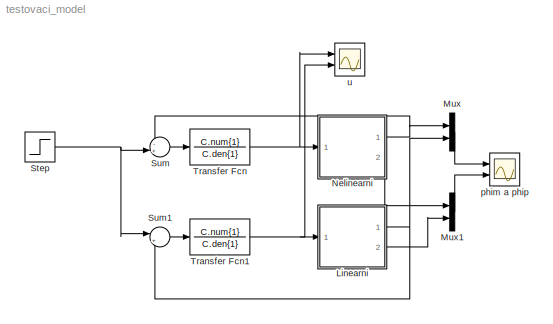
MODEL testovaci_model
KIND model
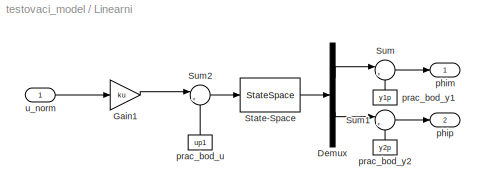
BLOCK [SubSystem] Linearni
  Ports = [1, 2]
  RequestExecContextInheritance = off
  SID = 107
BLOCK [Demux] Linearni/Demux
  DisplayOption = bar
  Outputs = 2
  Ports = [1, 2]
  SID = 109
BLOCK [Gain] Linearni/Gain1
  Gain = ku
  OutDataTypeStr = Inherit: Inherit via internal rule
  ParamDataTypeStr = Inherit: Inherit via internal rule
  SID = 110
  SaturateOnIntegerOverflow = off
BLOCK [StateSpace] Linearni/State-Space
  A = Alin
  B = Blin
  C = Clin
  D = Dlin
  Ports = [1, 1]
  SID = 111
  X0 = 0
BLOCK [Sum] Linearni/Sum
  IconShape = round
  InputSameDT = off
  Inputs = |++
  OutDataTypeStr = Inherit: Inherit via internal rule
  Ports = [2, 1]
  SID = 112
  SaturateOnIntegerOverflow = off
BLOCK [Sum] Linearni/Sum1
  IconShape = round
  InputSameDT = off
  Inputs = |++
  OutDataTypeStr = Inherit: Inherit via internal rule
  Ports = [2, 1]
  SID = 113
  SaturateOnIntegerOverflow = off
BLOCK [Sum] Linearni/Sum2
  IconShape = round
  InputSameDT = off
  Inputs = |+-
  OutDataTypeStr = Inherit: Inherit via internal rule
  Ports = [2, 1]
  SID = 114
  SaturateOnIntegerOverflow = off
BLOCK [Outport] Linearni/phim
  IconDisplay = Port number
  SID = 118
BLOCK [Outport] Linearni/phip
  IconDisplay = Port number
  Port = 2
  SID = 119
BLOCK [Constant] Linearni/prac_bod_u
  SID = 115
  Value = up1
BLOCK [Constant] Linearni/prac_bod_y1
  SID = 116
  Value = y1p
BLOCK [Constant] Linearni/prac_bod_y2
  SID = 117
  Value = y2p
BLOCK [Inport] Linearni/u_norm
  IconDisplay = Port number
  SID = 108
BLOCK [Mux] Mux
  DisplayOption = bar
  Inputs = 2
  Ports = [2, 1]
  SID = 75
BLOCK [Mux] Mux1
  DisplayOption = bar
  Inputs = 2
  Ports = [2, 1]
  SID = 76
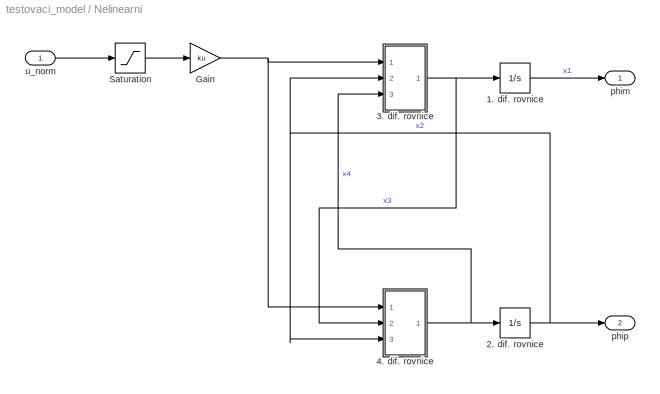
BLOCK [SubSystem] Nelinearni
  Ports = [1, 2]
  RequestExecContextInheritance = off
  SID = 120
BLOCK [Integrator] Nelinearni/1. dif. rovnice
  InitialCondition = x1p
  Ports = [1, 1]
  SID = 122
BLOCK [Integrator] Nelinearni/2. dif. rovnice
  InitialCondition = x2p
  Ports = [1, 1]
  SID = 123
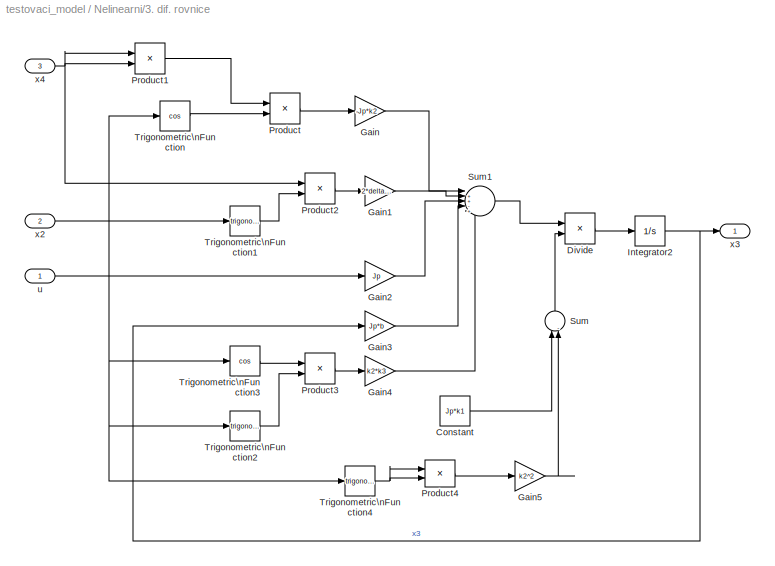
BLOCK [SubSystem] Nelinearni/3. dif. rovnice
  Ports = [3, 1]
  RequestExecContextInheritance = off
  SID = 124
BLOCK [Constant] Nelinearni/3. dif. rovnice/Constant
  SID = 128
  Value = Jp*k1
BLOCK [Product] Nelinearni/3. dif. rovnice/Divide
  InputSameDT = off
  Inputs = */
  OutDataTypeStr = Inherit: Inherit via internal rule
  Ports = [2, 1]
  RndMeth = Floor
  SID = 129
  SaturateOnIntegerOverflow = off
BLOCK [Gain] Nelinearni/3. dif. rovnice/Gain
  Gain = -Jp*k2
  OutDataTypeStr = Inherit: Inherit via internal rule
  ParamDataTypeStr = Inherit: Inherit via internal rule
  SID = 130
  SaturateOnIntegerOverflow = off
BLOCK [Gain] Nelinearni/3. dif. rovnice/Gain1
  Gain = 2*delta*k2
  OutDataTypeStr = Inherit: Inherit via internal rule
  ParamDataTypeStr = Inherit: Inherit via internal rule
  SID = 131
  SaturateOnIntegerOverflow = off
BLOCK [Gain] Nelinearni/3. dif. rovnice/Gain2
  Gain = Jp
  OutDataTypeStr = Inherit: Inherit via internal rule
  ParamDataTypeStr = Inherit: Inherit via internal rule
  SID = 132
  SaturateOnIntegerOverflow = off
BLOCK [Gain] Nelinearni/3. dif. rovnice/Gain3
  Gain = Jp*b
  OutDataTypeStr = Inherit: Inherit via internal rule
  ParamDataTypeStr = Inherit: Inherit via internal rule
  SID = 133
  SaturateOnIntegerOverflow = off
BLOCK [Gain] Nelinearni/3. dif. rovnice/Gain4
  Gain = k2*k3
  OutDataTypeStr = Inherit: Inherit via internal rule
  ParamDataTypeStr = Inherit: Inherit via internal rule
  SID = 134
  SaturateOnIntegerOverflow = off
BLOCK [Gain] Nelinearni/3. dif. rovnice/Gain5
  Gain = k2^2
  OutDataTypeStr = Inherit: Inherit via internal rule
  ParamDataTypeStr = Inherit: Inherit via internal rule
  SID = 135
  SaturateOnIntegerOverflow = off
BLOCK [Integrator] Nelinearni/3. dif. rovnice/Integrator2
  InitialCondition = x3p
  Ports = [1, 1]
  SID = 136
BLOCK [Product] Nelinearni/3. dif. rovnice/Product
  InputSameDT = off
  OutDataTypeStr = Inherit: Inherit via internal rule
  Ports = [2, 1]
  RndMeth = Floor
  SID = 137
  SaturateOnIntegerOverflow = off
BLOCK [Product] Nelinearni/3. dif. rovnice/Product1
  InputSameDT = off
  OutDataTypeStr = Inherit: Inherit via internal rule
  Ports = [2, 1]
  RndMeth = Floor
  SID = 138
  SaturateOnIntegerOverflow = off
BLOCK [Product] Nelinearni/3. dif. rovnice/Product2
  InputSameDT = off
  OutDataTypeStr = Inherit: Inherit via internal rule
  Ports = [2, 1]
  RndMeth = Floor
  SID = 139
  SaturateOnIntegerOverflow = off
BLOCK [Product] Nelinearni/3. dif. rovnice/Product3
  InputSameDT = off
  OutDataTypeStr = Inherit: Inherit via internal rule
  Ports = [2, 1]
  RndMeth = Floor
  SID = 140
  SaturateOnIntegerOverflow = off
BLOCK [Product] Nelinearni/3. dif. rovnice/Product4
  InputSameDT = off
  OutDataTypeStr = Inherit: Inherit via internal rule
  Ports = [2, 1]
  RndMeth = Floor
  SID = 141
  SaturateOnIntegerOverflow = off
BLOCK [Sum] Nelinearni/3. dif. rovnice/Sum
  IconShape = round
  InputSameDT = off
  Inputs = |-+
  OutDataTypeStr = Inherit: Inherit via internal rule
  Ports = [2, 1]
  SID = 142
  SaturateOnIntegerOverflow = off
BLOCK [Sum] Nelinearni/3. dif. rovnice/Sum1
  IconShape = round
  InputSameDT = off
  Inputs = |++-++
  OutDataTypeStr = Inherit: Inherit via internal rule
  Ports = [5, 1]
  SID = 143
  SaturateOnIntegerOverflow = off
BLOCK [Trigonometry] Nelinearni/3. dif. rovnice/Trigonometric\nFunction
  Operator = cos
  Ports = [1, 1]
  SID = 144
BLOCK [Trigonometry] Nelinearni/3. dif. rovnice/Trigonometric\nFunction1
  Ports = [1, 1]
  SID = 145
BLOCK [Trigonometry] Nelinearni/3. dif. rovnice/Trigonometric\nFunction2
  Ports = [1, 1]
  SID = 146
BLOCK [Trigonometry] Nelinearni/3. dif. rovnice/Trigonometric\nFunction3
  Operator = cos
  Ports = [1, 1]
  SID = 147
BLOCK [Trigonometry] Nelinearni/3. dif. rovnice/Trigonometric\nFunction4
  Ports = [1, 1]
  SID = 148
BLOCK [Inport] Nelinearni/3. dif. rovnice/u
  IconDisplay = Port number
  SID = 125
BLOCK [Inport] Nelinearni/3. dif. rovnice/x2
  IconDisplay = Port number
  Port = 2
  SID = 126
BLOCK [Outport] Nelinearni/3. dif. rovnice/x3
  IconDisplay = Port number
  SID = 149
BLOCK [Inport] Nelinearni/3. dif. rovnice/x4
  IconDisplay = Port number
  Port = 3
  SID = 127
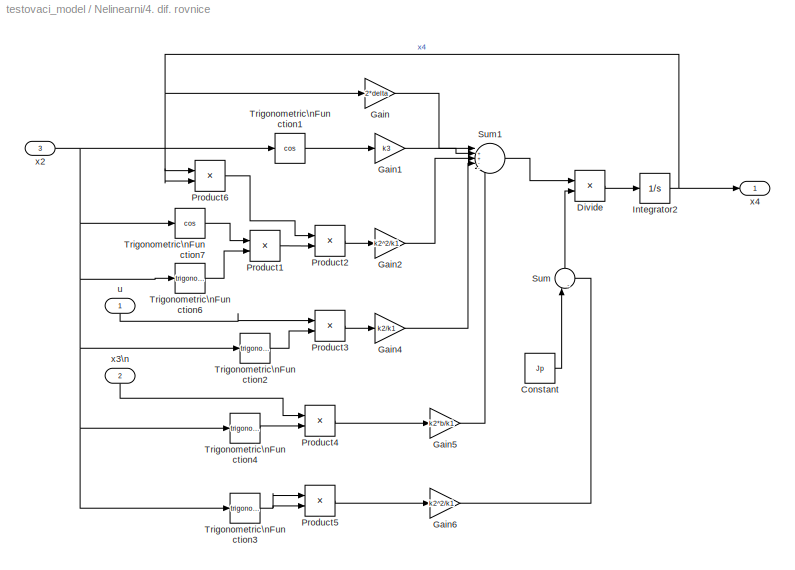
BLOCK [SubSystem] Nelinearni/4. dif. rovnice
  Ports = [3, 1]
  RequestExecContextInheritance = off
  SID = 150
BLOCK [Constant] Nelinearni/4. dif. rovnice/Constant
  SID = 154
  Value = Jp
BLOCK [Product] Nelinearni/4. dif. rovnice/Divide
  InputSameDT = off
  Inputs = */
  OutDataTypeStr = Inherit: Inherit via internal rule
  Ports = [2, 1]
  RndMeth = Floor
  SID = 155
  SaturateOnIntegerOverflow = off
BLOCK [Gain] Nelinearni/4. dif. rovnice/Gain
  Gain = 2*delta
  OutDataTypeStr = Inherit: Inherit via internal rule
  ParamDataTypeStr = Inherit: Inherit via internal rule
  SID = 156
  SaturateOnIntegerOverflow = off
BLOCK [Gain] Nelinearni/4. dif. rovnice/Gain1
  Gain = k3
  OutDataTypeStr = Inherit: Inherit via internal rule
  ParamDataTypeStr = Inherit: Inherit via internal rule
  SID = 157
  SaturateOnIntegerOverflow = off
BLOCK [Gain] Nelinearni/4. dif. rovnice/Gain2
  Gain = k2^2/k1
  OutDataTypeStr = Inherit: Inherit via internal rule
  ParamDataTypeStr = Inherit: Inherit via internal rule
  SID = 158
  SaturateOnIntegerOverflow = off
BLOCK [Gain] Nelinearni/4. dif. rovnice/Gain4
  Gain = k2/k1
  OutDataTypeStr = Inherit: Inherit via internal rule
  ParamDataTypeStr = Inherit: Inherit via internal rule
  SID = 159
  SaturateOnIntegerOverflow = off
BLOCK [Gain] Nelinearni/4. dif. rovnice/Gain5
  Gain = k2*b/k1
  OutDataTypeStr = Inherit: Inherit via internal rule
  ParamDataTypeStr = Inherit: Inherit via internal rule
  SID = 160
  SaturateOnIntegerOverflow = off
BLOCK [Gain] Nelinearni/4. dif. rovnice/Gain6
  Gain = k2^2/k1
  OutDataTypeStr = Inherit: Inherit via internal rule
  ParamDataTypeStr = Inherit: Inherit via internal rule
  SID = 161
  SaturateOnIntegerOverflow = off
BLOCK [Integrator] Nelinearni/4. dif. rovnice/Integrator2
  InitialCondition = x4p
  Ports = [1, 1]
  SID = 162
BLOCK [Product] Nelinearni/4. dif. rovnice/Product1
  InputSameDT = off
  OutDataTypeStr = Inherit: Inherit via internal rule
  Ports = [2, 1]
  RndMeth = Floor
  SID = 163
  SaturateOnIntegerOverflow = off
BLOCK [Product] Nelinearni/4. dif. rovnice/Product2
  InputSameDT = off
  OutDataTypeStr = Inherit: Inherit via internal rule
  Ports = [2, 1]
  RndMeth = Floor
  SID = 164
  SaturateOnIntegerOverflow = off
BLOCK [Product] Nelinearni/4. dif. rovnice/Product3
  InputSameDT = off
  OutDataTypeStr = Inherit: Inherit via internal rule
  Ports = [2, 1]
  RndMeth = Floor
  SID = 165
  SaturateOnIntegerOverflow = off
BLOCK [Product] Nelinearni/4. dif. rovnice/Product4
  InputSameDT = off
  OutDataTypeStr = Inherit: Inherit via internal rule
  Ports = [2, 1]
  RndMeth = Floor
  SID = 166
  SaturateOnIntegerOverflow = off
BLOCK [Product] Nelinearni/4. dif. rovnice/Product5
  InputSameDT = off
  OutDataTypeStr = Inherit: Inherit via internal rule
  Ports = [2, 1]
  RndMeth = Floor
  SID = 167
  SaturateOnIntegerOverflow = off
BLOCK [Product] Nelinearni/4. dif. rovnice/Product6
  InputSameDT = off
  OutDataTypeStr = Inherit: Inherit via internal rule
  Ports = [2, 1]
  RndMeth = Floor
  SID = 168
  SaturateOnIntegerOverflow = off
BLOCK [Sum] Nelinearni/4. dif. rovnice/Sum
  IconShape = round
  InputSameDT = off
  Inputs = |-+
  OutDataTypeStr = Inherit: Inherit via internal rule
  Ports = [2, 1]
  SID = 169
  SaturateOnIntegerOverflow = off
BLOCK [Sum] Nelinearni/4. dif. rovnice/Sum1
  IconShape = round
  InputSameDT = off
  Inputs = |++--+
  OutDataTypeStr = Inherit: Inherit via internal rule
  Ports = [5, 1]
  SID = 170
  SaturateOnIntegerOverflow = off
BLOCK [Trigonometry] Nelinearni/4. dif. rovnice/Trigonometric\nFunction1
  Operator = cos
  Ports = [1, 1]
  SID = 171
BLOCK [Trigonometry] Nelinearni/4. dif. rovnice/Trigonometric\nFunction2
  Ports = [1, 1]
  SID = 172
BLOCK [Trigonometry] Nelinearni/4. dif. rovnice/Trigonometric\nFunction3
  Ports = [1, 1]
  SID = 173
BLOCK [Trigonometry] Nelinearni/4. dif. rovnice/Trigonometric\nFunction4
  Ports = [1, 1]
  SID = 174
BLOCK [Trigonometry] Nelinearni/4. dif. rovnice/Trigonometric\nFunction6
  Ports = [1, 1]
  SID = 175
BLOCK [Trigonometry] Nelinearni/4. dif. rovnice/Trigonometric\nFunction7
  Operator = cos
  Ports = [1, 1]
  SID = 176
BLOCK [Inport] Nelinearni/4. dif. rovnice/u
  IconDisplay = Port number
  SID = 151
BLOCK [Inport] Nelinearni/4. dif. rovnice/x2
  IconDisplay = Port number
  Port = 3
  SID = 153
BLOCK [Inport] Nelinearni/4. dif. rovnice/x3\n
  IconDisplay = Port number
  Port = 2
  SID = 152
BLOCK [Outport] Nelinearni/4. dif. rovnice/x4
  IconDisplay = Port number
  SID = 177
BLOCK [Gain] Nelinearni/Gain
  Gain = ku
  OutDataTypeStr = Inherit: Inherit via internal rule
  ParamDataTypeStr = Inherit: Inherit via internal rule
  SID = 178
  SaturateOnIntegerOverflow = off
BLOCK [Saturate] Nelinearni/Saturation
  InputPortMap = u0
  LowerLimit = -1
  Ports = [1, 1]
  SID = 179
  UpperLimit = 1
BLOCK [Outport] Nelinearni/phim
  IconDisplay = Port number
  SID = 180
BLOCK [Outport] Nelinearni/phip
  IconDisplay = Port number
  Port = 2
  SID = 181
BLOCK [Inport] Nelinearni/u_norm
  IconDisplay = Port number
  SID = 121
BLOCK [Step] Step
  After = 20
  SID = 78
  SampleTime = 0
  Time = 0
BLOCK [Sum] Sum
  IconShape = round
  InputSameDT = off
  Inputs = -+|
  OutDataTypeStr = Inherit: Inherit via internal rule
  Ports = [2, 1]
  SID = 100
  SaturateOnIntegerOverflow = off
BLOCK [Sum] Sum1
  IconShape = round
  InputSameDT = off
  Inputs = |+-
  OutDataTypeStr = Inherit: Inherit via internal rule
  Ports = [2, 1]
  SID = 101
  SaturateOnIntegerOverflow = off
BLOCK [TransferFcn] Transfer Fcn
  Denominator = C.den{1}
  Numerator = C.num{1}
  SID = 99
BLOCK [TransferFcn] Transfer Fcn1
  Denominator = C.den{1}
  Numerator = C.num{1}
  SID = 102
BLOCK [Scope] phim a phip
  DataFormat = StructureWithTime
  Floating = off
  LegendLocations = 0.91847     0.54704    0.062605    0.032659\n0.91743      0.4481    0.062605    0.032659
  LimitDataPoints = off
  NumInputPorts = 2
  Ports = [2]
  SID = 77
  SampleTime = 0
  SaveName = vystup
  SaveToWorkspace = on
  ShowLegends = on
  TimeRange = 12.49629428456308
  YMax = 0.9999999999998991~-1.570796326794724
  YMin = 0.999999999999679~-1.570796326795069
BLOCK [Scope] u
  DataFormat = StructureWithTime
  Floating = off
  LegendLocations = 0.91847     0.54704    0.041268    0.018593\n0.91743      0.4481    0.044455    0.018593
  LimitDataPoints = off
  NumInputPorts = 2
  Ports = [2]
  SID = 105
  SampleTime = 0
  SaveName = vystup1
  SaveToWorkspace = on
  ShowLegends = on
  TimeRange = 12.49629428456308
  YMax = 0.9999999999998991~-1.570796326794724
  YMin = 0.999999999999679~-1.570796326795069
LINE Linearni/Demux:1 -> Linearni/Sum:1
LINE Linearni/Demux:2 -> Linearni/Sum1:1
LINE Linearni/Gain1:1 -> Linearni/Sum2:1
LINE Linearni/State-Space:1 -> Linearni/Demux:1
LINE Linearni/Sum1:1 -> Linearni/phip:1
LINE Linearni/Sum2:1 -> Linearni/State-Space:1
LINE Linearni/Sum:1 -> Linearni/phim:1
LINE Linearni/prac_bod_u:1 -> Linearni/Sum2:2
LINE Linearni/prac_bod_y1:1 -> Linearni/Sum:2
LINE Linearni/prac_bod_y2:1 -> Linearni/Sum1:2
LINE Linearni/u_norm:1 -> Linearni/Gain1:1
NET Linearni:1 -> Mux:2, Sum1:2
LINE Linearni:2 -> Mux1:2
LINE Mux1:1 -> phim a phip:2
LINE Mux:1 -> phim a phip:1
LINE Nelinearni/1. dif. rovnice:1 -> Nelinearni/phim:1
NET Nelinearni/2. dif. rovnice:1 -> Nelinearni/3. dif. rovnice:2, Nelinearni/4. dif. rovnice:3, Nelinearni/phip:1
LINE Nelinearni/3. dif. rovnice/Constant:1 -> Nelinearni/3. dif. rovnice/Sum:1
LINE Nelinearni/3. dif. rovnice/Divide:1 -> Nelinearni/3. dif. rovnice/Integrator2:1
LINE Nelinearni/3. dif. rovnice/Gain1:1 -> Nelinearni/3. dif. rovnice/Sum1:2
LINE Nelinearni/3. dif. rovnice/Gain2:1 -> Nelinearni/3. dif. rovnice/Sum1:3
LINE Nelinearni/3. dif. rovnice/Gain3:1 -> Nelinearni/3. dif. rovnice/Sum1:4
LINE Nelinearni/3. dif. rovnice/Gain4:1 -> Nelinearni/3. dif. rovnice/Sum1:5
LINE Nelinearni/3. dif. rovnice/Gain5:1 -> Nelinearni/3. dif. rovnice/Sum:2
LINE Nelinearni/3. dif. rovnice/Gain:1 -> Nelinearni/3. dif. rovnice/Sum1:1
NET Nelinearni/3. dif. rovnice/Integrator2:1 -> Nelinearni/3. dif. rovnice/Gain3:1, Nelinearni/3. dif. rovnice/x3:1
LINE Nelinearni/3. dif. rovnice/Product1:1 -> Nelinearni/3. dif. rovnice/Product:1
LINE Nelinearni/3. dif. rovnice/Product2:1 -> Nelinearni/3. dif. rovnice/Gain1:1
LINE Nelinearni/3. dif. rovnice/Product3:1 -> Nelinearni/3. dif. rovnice/Gain4:1
LINE Nelinearni/3. dif. rovnice/Product4:1 -> Nelinearni/3. dif. rovnice/Gain5:1
LINE Nelinearni/3. dif. rovnice/Product:1 -> Nelinearni/3. dif. rovnice/Gain:1
LINE Nelinearni/3. dif. rovnice/Sum1:1 -> Nelinearni/3. dif. rovnice/Divide:1
LINE Nelinearni/3. dif. rovnice/Sum:1 -> Nelinearni/3. dif. rovnice/Divide:2
LINE Nelinearni/3. dif. rovnice/Trigonometric\nFunction1:1 -> Nelinearni/3. dif. rovnice/Product2:2
LINE Nelinearni/3. dif. rovnice/Trigonometric\nFunction2:1 -> Nelinearni/3. dif. rovnice/Product3:2
LINE Nelinearni/3. dif. rovnice/Trigonometric\nFunction3:1 -> Nelinearni/3. dif. rovnice/Product3:1
NET Nelinearni/3. dif. rovnice/Trigonometric\nFunction4:1 -> Nelinearni/3. dif. rovnice/Product4:1, Nelinearni/3. dif. rovnice/Product4:2
LINE Nelinearni/3. dif. rovnice/Trigonometric\nFunction:1 -> Nelinearni/3. dif. rovnice/Product:2
LINE Nelinearni/3. dif. rovnice/u:1 -> Nelinearni/3. dif. rovnice/Gain2:1
NET Nelinearni/3. dif. rovnice/x2:1 -> Nelinearni/3. dif. rovnice/Trigonometric\nFunction1:1, Nelinearni/3. dif. rovnice/Trigonometric\nFunction2:1, Nelinearni/3. dif. rovnice/Trigonometric\nFunction3:1, Nelinearni/3. dif. rovnice/Trigonometric\nFunction4:1, Nelinearni/3. dif. rovnice/Trigonometric\nFunction:1
NET Nelinearni/3. dif. rovnice/x4:1 -> Nelinearni/3. dif. rovnice/Product1:1, Nelinearni/3. dif. rovnice/Product1:2, Nelinearni/3. dif. rovnice/Product2:1
NET Nelinearni/3. dif. rovnice:1 -> Nelinearni/1. dif. rovnice:1, Nelinearni/4. dif. rovnice:2
LINE Nelinearni/4. dif. rovnice/Constant:1 -> Nelinearni/4. dif. rovnice/Sum:1
LINE Nelinearni/4. dif. rovnice/Divide:1 -> Nelinearni/4. dif. rovnice/Integrator2:1
LINE Nelinearni/4. dif. rovnice/Gain1:1 -> Nelinearni/4. dif. rovnice/Sum1:2
LINE Nelinearni/4. dif. rovnice/Gain2:1 -> Nelinearni/4. dif. rovnice/Sum1:3
LINE Nelinearni/4. dif. rovnice/Gain4:1 -> Nelinearni/4. dif. rovnice/Sum1:4
LINE Nelinearni/4. dif. rovnice/Gain5:1 -> Nelinearni/4. dif. rovnice/Sum1:5
LINE Nelinearni/4. dif. rovnice/Gain6:1 -> Nelinearni/4. dif. rovnice/Sum:2
LINE Nelinearni/4. dif. rovnice/Gain:1 -> Nelinearni/4. dif. rovnice/Sum1:1
NET Nelinearni/4. dif. rovnice/Integrator2:1 -> Nelinearni/4. dif. rovnice/Gain:1, Nelinearni/4. dif. rovnice/Product6:1, Nelinearni/4. dif. rovnice/Product6:2, Nelinearni/4. dif. rovnice/x4:1
LINE Nelinearni/4. dif. rovnice/Product1:1 -> Nelinearni/4. dif. rovnice/Product2:2
LINE Nelinearni/4. dif. rovnice/Product2:1 -> Nelinearni/4. dif. rovnice/Gain2:1
LINE Nelinearni/4. dif. rovnice/Product3:1 -> Nelinearni/4. dif. rovnice/Gain4:1
LINE Nelinearni/4. dif. rovnice/Product4:1 -> Nelinearni/4. dif. rovnice/Gain5:1
LINE Nelinearni/4. dif. rovnice/Product5:1 -> Nelinearni/4. dif. rovnice/Gain6:1
LINE Nelinearni/4. dif. rovnice/Product6:1 -> Nelinearni/4. dif. rovnice/Product2:1
LINE Nelinearni/4. dif. rovnice/Sum1:1 -> Nelinearni/4. dif. rovnice/Divide:1
LINE Nelinearni/4. dif. rovnice/Sum:1 -> Nelinearni/4. dif. rovnice/Divide:2
LINE Nelinearni/4. dif. rovnice/Trigonometric\nFunction1:1 -> Nelinearni/4. dif. rovnice/Gain1:1
LINE Nelinearni/4. dif. rovnice/Trigonometric\nFunction2:1 -> Nelinearni/4. dif. rovnice/Product3:2
NET Nelinearni/4. dif. rovnice/Trigonometric\nFunction3:1 -> Nelinearni/4. dif. rovnice/Product5:1, Nelinearni/4. dif. rovnice/Product5:2
LINE Nelinearni/4. dif. rovnice/Trigonometric\nFunction4:1 -> Nelinearni/4. dif. rovnice/Product4:2
LINE Nelinearni/4. dif. rovnice/Trigonometric\nFunction6:1 -> Nelinearni/4. dif. rovnice/Product1:2
LINE Nelinearni/4. dif. rovnice/Trigonometric\nFunction7:1 -> Nelinearni/4. dif. rovnice/Product1:1
LINE Nelinearni/4. dif. rovnice/u:1 -> Nelinearni/4. dif. rovnice/Product3:1
NET Nelinearni/4. dif. rovnice/x2:1 -> Nelinearni/4. dif. rovnice/Trigonometric\nFunction1:1, Nelinearni/4. dif. rovnice/Trigonometric\nFunction2:1, Nelinearni/4. dif. rovnice/Trigonometric\nFunction3:1, Nelinearni/4. dif. rovnice/Trigonometric\nFunction4:1, Nelinearni/4. dif. rovnice/Trigonometric\nFunction6:1, Nelinearni/4. dif. rovnice/Trigonometric\nFunction7:1
LINE Nelinearni/4. dif. rovnice/x3\n:1 -> Nelinearni/4. dif. rovnice/Product4:1
NET Nelinearni/4. dif. rovnice:1 -> Nelinearni/2. dif. rovnice:1, Nelinearni/3. dif. rovnice:3
NET Nelinearni/Gain:1 -> Nelinearni/3. dif. rovnice:1, Nelinearni/4. dif. rovnice:1
LINE Nelinearni/Saturation:1 -> Nelinearni/Gain:1
LINE Nelinearni/u_norm:1 -> Nelinearni/Saturation:1
NET Nelinearni:1 -> Mux:1, Sum:1
LINE Nelinearni:2 -> Mux1:1
NET Step:1 -> Sum1:1, Sum:2
LINE Sum1:1 -> Transfer Fcn1:1
LINE Sum:1 -> Transfer Fcn:1
NET Transfer Fcn1:1 -> Linearni:1, u:2
NET Transfer Fcn:1 -> Nelinearni:1, u:1
note: NET lines group one-source signal fan-out (src -> all destinations, sorted); 1:1 wires keep LINE
